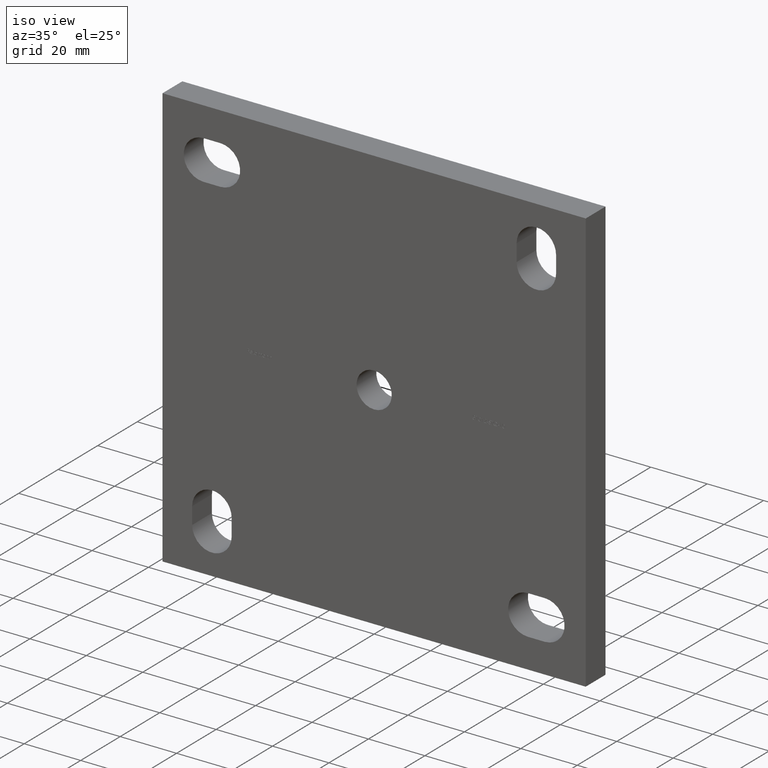
[diagram: clean part render]
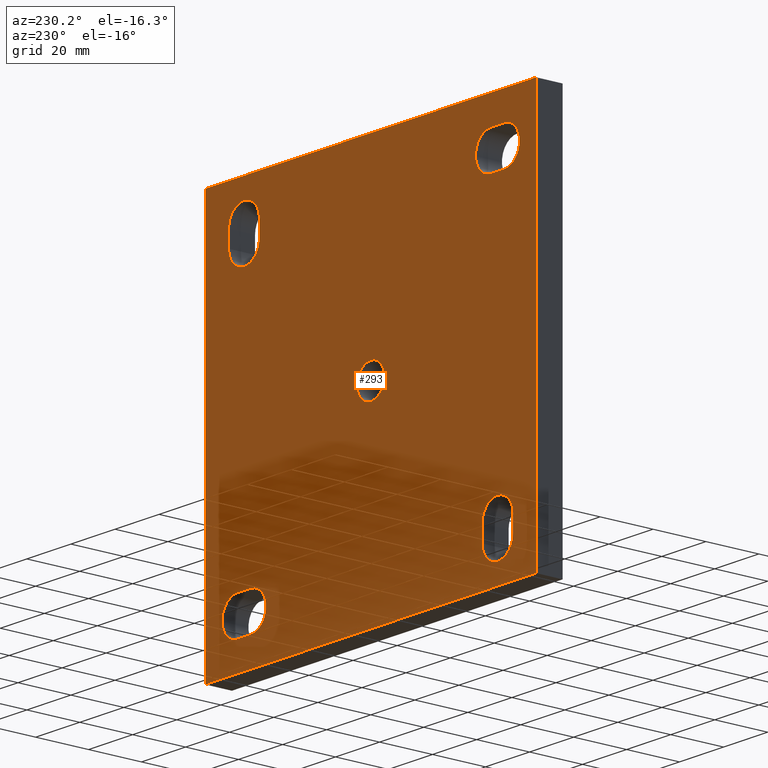
[diagram: tour spotlight — one face highlighted and labeled with its STEP entity id]
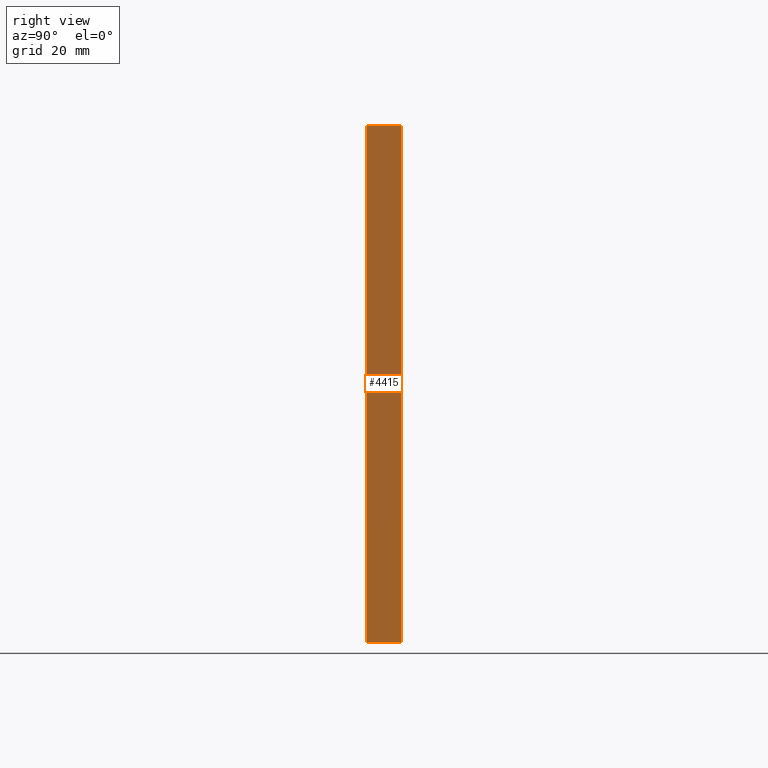
[diagram: tour spotlight — one face highlighted and labeled with its STEP entity id]
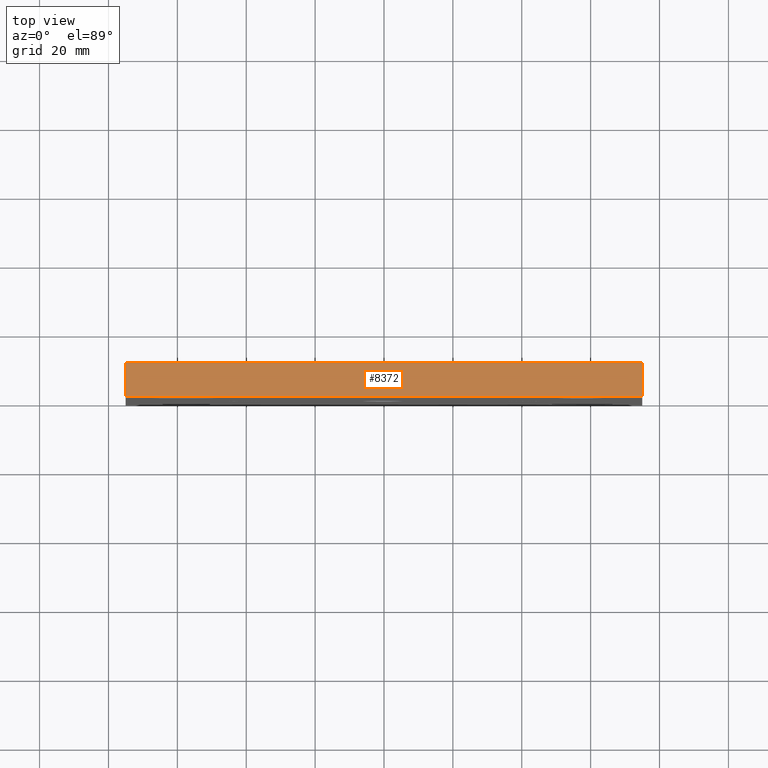
[diagram: tour spotlight — one face highlighted and labeled with its STEP entity id]
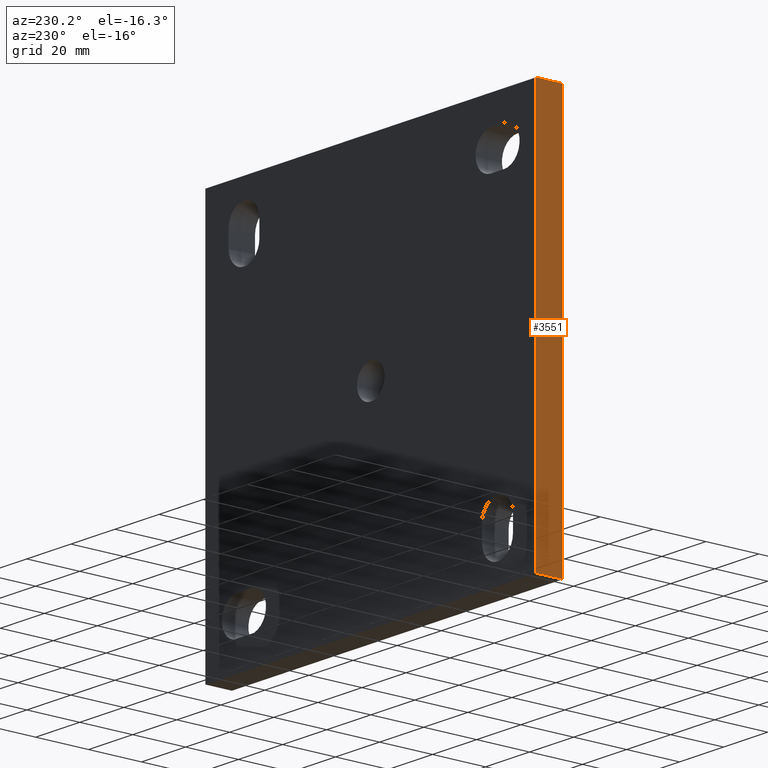
[diagram: tour spotlight — one face highlighted and labeled with its STEP entity id]
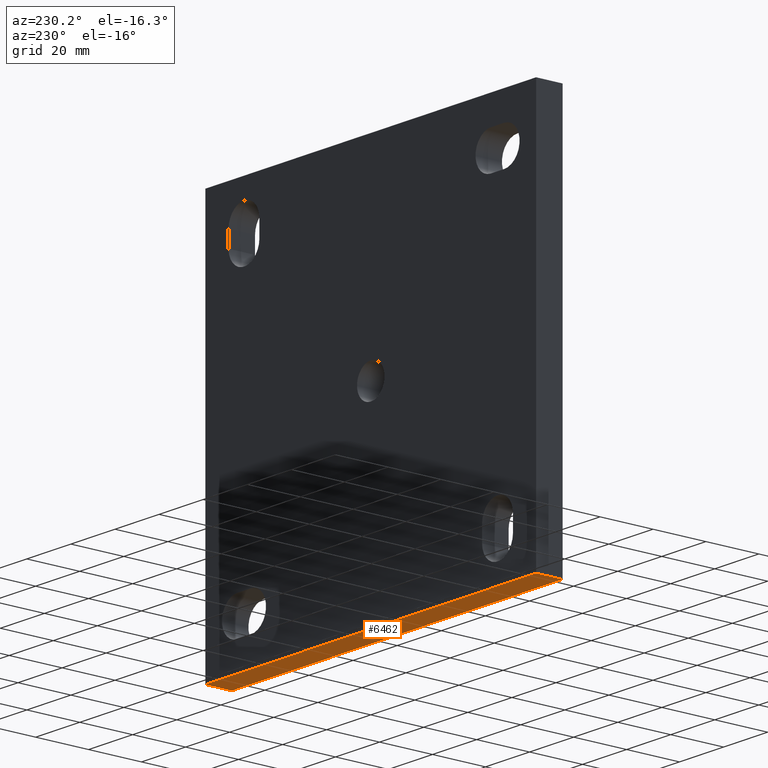
[diagram: tour spotlight — one face highlighted and labeled with its STEP entity id]
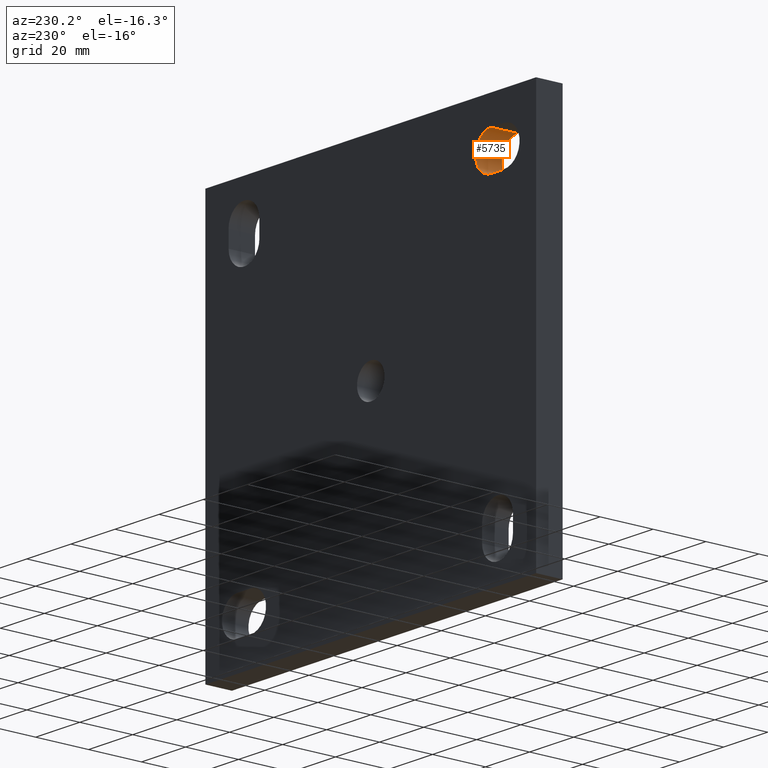
[diagram: tour spotlight — one face highlighted and labeled with its STEP entity id]
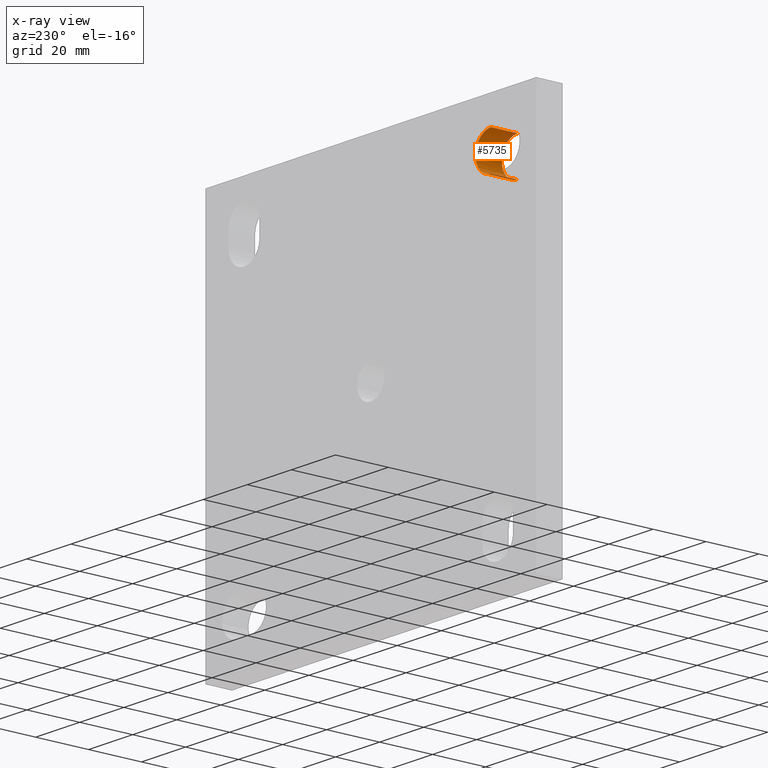
[diagram: x-ray of the same camera — body ghosted, this tour face saturated]
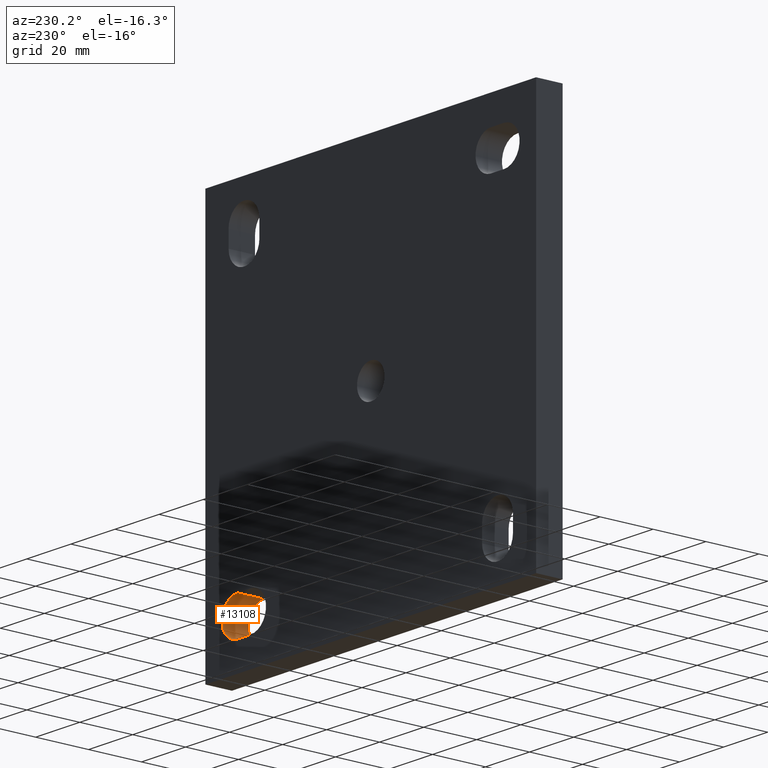
[diagram: tour spotlight — one face highlighted and labeled with its STEP entity id]
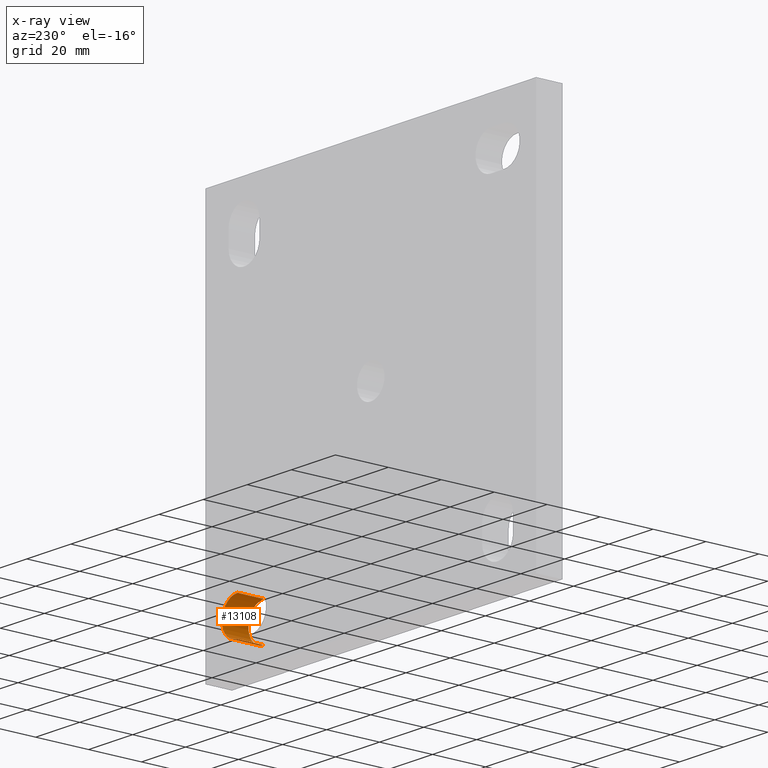
[diagram: x-ray of the same camera — body ghosted, this tour face saturated]
A machine part: a face-by-face anatomy tour. The part has 265 B-rep faces; the first image is the clean iso view, then the 7 largest visible faces are spotlighted one at a time (largest first), each with its STEP entity span.

Face 1 — auxiliary view, entity #293. In plain terms, the highlighted planar face has unit normal (0, 1, 0).
Definition (entity closure, byte-faithful):
#127 = CARTESIAN_POINT ( 'NONE',  ( 75.00000000000001400, 10.00000000000000000, 75.00000000000001400 ) ) ;
#230 = EDGE_CURVE ( 'NONE', #9574, #13491, #13199, .T. ) ;
#264 = EDGE_CURVE ( 'NONE', #12780, #2427, #3860, .T. ) ;
#293 = ADVANCED_FACE ( 'NONE', ( #11169, #11011, #8804, #827, #6077, #8644 ), #10919, .T. ) ;
#425 = VERTEX_POINT ( 'NONE', #127 ) ;
#428 = CARTESIAN_POINT ( 'NONE',  ( 0.0000000000000000000, 10.00000000000000000, 0.0000000000000000000 ) ) ;
#483 = CARTESIAN_POINT ( 'NONE',  ( -60.50000000000002100, 10.00000000000000000, 64.49999999999998600 ) ) ;
#506 = CARTESIAN_POINT ( 'NONE',  ( 64.50000000000000000, 10.00000000000000000, 60.50000000000002800 ) ) ;
#512 = LINE ( 'NONE', #6404, #7820 ) ;
#721 = EDGE_CURVE ( 'NONE', #13798, #8674, #11095, .T. ) ;
#727 = DIRECTION ( 'NONE',  ( 0.0000000000000000000, 0.0000000000000000000, 1.000000000000000000 ) ) ;
#827 = FACE_BOUND ( 'NONE', #12759, .T. ) ;
#866 = CARTESIAN_POINT ( 'NONE',  ( -64.49999999999998600, 10.00000000000000000, -60.50000000000006400 ) ) ;
#1074 = CARTESIAN_POINT ( 'NONE',  ( 54.50000000000000700, 10.00000000000000000, -50.50000000000003600 ) ) ;
#1269 = AXIS2_PLACEMENT_3D ( 'NONE', #8218, #6120, #5026 ) ;
#1350 = VECTOR ( 'NONE', #4437, 1000.000000000000000 ) ;
#1474 = CARTESIAN_POINT ( 'NONE',  ( -60.50000000000002100, 10.00000000000000000, 50.50000000000000000 ) ) ;
#1659 = VECTOR ( 'NONE', #6589, 1000.000000000000000 ) ;
#1722 = CARTESIAN_POINT ( 'NONE',  ( 7.654042494670957600E-016, 10.00000000000000000, -6.250000000000000000 ) ) ;
#1734 = CIRCLE ( 'NONE', #7396, 6.250000000000000000 ) ;
#1901 = ORIENTED_EDGE ( 'NONE', *, *, #11914, .F. ) ;
#1940 = CARTESIAN_POINT ( 'NONE',  ( 74.99999999999998600, 10.00000000000000000, -74.99999999999998600 ) ) ;
#2047 = EDGE_LOOP ( 'NONE', ( #6634, #12879, #6286, #1901 ) ) ;
#2128 = DIRECTION ( 'NONE',  ( 1.850371707708594300E-016, 0.0000000000000000000, 1.000000000000000000 ) ) ;
#2224 = CARTESIAN_POINT ( 'NONE',  ( -50.50000000000002100, 10.00000000000000000, -60.50000000000006400 ) ) ;
#2284 = CARTESIAN_POINT ( 'NONE',  ( -64.49999999999998600, 10.00000000000000000, -54.50000000000005000 ) ) ;
#2359 = ORIENTED_EDGE ( 'NONE', *, *, #4051, .F. ) ;
#2427 = VERTEX_POINT ( 'NONE', #3637 ) ;
#2527 = ORIENTED_EDGE ( 'NONE', *, *, #4696, .F. ) ;
#2658 = AXIS2_PLACEMENT_3D ( 'NONE', #9123, #13775, #727 ) ;
#2734 = EDGE_CURVE ( 'NONE', #5788, #9744, #4277, .T. ) ;
#2806 = CARTESIAN_POINT ( 'NONE',  ( 54.50000000000000700, 10.00000000000000000, -57.50000000000003600 ) ) ;
#2895 = VERTEX_POINT ( 'NONE', #3191 ) ;
#2917 = ORIENTED_EDGE ( 'NONE', *, *, #10808, .F. ) ;
#2932 = ORIENTED_EDGE ( 'NONE', *, *, #3079, .T. ) ;
#2977 = EDGE_LOOP ( 'NONE', ( #2932, #13597, #4953, #11418 ) ) ;
#3079 = EDGE_CURVE ( 'NONE', #425, #6130, #8021, .T. ) ;
#3157 = EDGE_CURVE ( 'NONE', #12249, #5788, #10207, .T. ) ;
#3189 = CIRCLE ( 'NONE', #7657, 6.999999999999992000 ) ;
#3191 = CARTESIAN_POINT ( 'NONE',  ( 57.50000000000000700, 10.00000000000000000, 67.50000000000001400 ) ) ;
#3205 = CARTESIAN_POINT ( 'NONE',  ( -60.50000000000002100, 10.00000000000000000, 50.50000000000000000 ) ) ;
#3276 = LINE ( 'NONE', #7265, #12819 ) ;
#3357 = EDGE_CURVE ( 'NONE', #3571, #12189, #8354, .T. ) ;
#3427 = CARTESIAN_POINT ( 'NONE',  ( -64.49999999999998600, 10.00000000000000000, -60.50000000000006400 ) ) ;
#3443 = CARTESIAN_POINT ( 'NONE',  ( 60.50000000000001400, 10.00000000000000000, -64.50000000000002800 ) ) ;
#3461 = DIRECTION ( 'NONE',  ( 0.0000000000000000000, 0.0000000000000000000, 1.000000000000000000 ) ) ;
#3468 = VERTEX_POINT ( 'NONE', #506 ) ;
#3535 = DIRECTION ( 'NONE',  ( 0.0000000000000000000, 1.000000000000000000, 0.0000000000000000000 ) ) ;
#3556 = VERTEX_POINT ( 'NONE', #8412 ) ;
#3571 = VERTEX_POINT ( 'NONE', #10386 ) ;
#3613 = CARTESIAN_POINT ( 'NONE',  ( -57.50000000000000700, 10.00000000000000000, -60.50000000000007100 ) ) ;
#3637 = CARTESIAN_POINT ( 'NONE',  ( -50.50000000000002100, 10.00000000000000000, -54.50000000000004300 ) ) ;
#3664 = CARTESIAN_POINT ( 'NONE',  ( 64.50000000000000000, 10.00000000000000000, 54.50000000000000700 ) ) ;
#3726 = CARTESIAN_POINT ( 'NONE',  ( -57.50000000000000700, 10.00000000000000000, -54.50000000000004300 ) ) ;
#3731 = CIRCLE ( 'NONE', #11681, 6.999999999999978700 ) ;
#3738 = LINE ( 'NONE', #2224, #13582 ) ;
#3859 = CARTESIAN_POINT ( 'NONE',  ( -57.50000000000000700, 10.00000000000000000, -47.50000000000005700 ) ) ;
#3860 = CIRCLE ( 'NONE', #11333, 6.999999999999985800 ) ;
#3904 = CIRCLE ( 'NONE', #2658, 6.999999999999992000 ) ;
#3919 = VECTOR ( 'NONE', #2128, 1000.000000000000000 ) ;
#3948 = VERTEX_POINT ( 'NONE', #12637 ) ;
#3995 = CARTESIAN_POINT ( 'NONE',  ( 0.0000000000000000000, 10.00000000000000000, 0.0000000000000000000 ) ) ;
#4003 = LINE ( 'NONE', #7053, #12471 ) ;
#4004 = CARTESIAN_POINT ( 'NONE',  ( -54.50000000000000000, 10.00000000000000000, 57.49999999999999300 ) ) ;
#4051 = EDGE_CURVE ( 'NONE', #5891, #3948, #512, .T. ) ;
#4069 = CIRCLE ( 'NONE', #6422, 6.999999999999992000 ) ;
#4097 = DIRECTION ( 'NONE',  ( 0.0000000000000000000, 0.0000000000000000000, 1.000000000000000000 ) ) ;
#4258 = EDGE_CURVE ( 'NONE', #3556, #13798, #3731, .T. ) ;
#4277 = LINE ( 'NONE', #3205, #5137 ) ;
#4341 = EDGE_CURVE ( 'NONE', #9744, #5109, #3904, .T. ) ;
#4418 = VECTOR ( 'NONE', #6689, 1000.000000000000000 ) ;
#4437 = DIRECTION ( 'NONE',  ( 0.0000000000000000000, 0.0000000000000000000, 1.000000000000000000 ) ) ;
#4442 = DIRECTION ( 'NONE',  ( 0.0000000000000000000, 1.000000000000000000, 0.0000000000000000000 ) ) ;
#4489 = CARTESIAN_POINT ( 'NONE',  ( -60.50000000000002100, 10.00000000000000000, 64.49999999999998600 ) ) ;
#4584 = EDGE_CURVE ( 'NONE', #13959, #10526, #6297, .T. ) ;
#4642 = EDGE_CURVE ( 'NONE', #6130, #3571, #11032, .T. ) ;
#4696 = EDGE_CURVE ( 'NONE', #13491, #5891, #4069, .T. ) ;
#4837 = DIRECTION ( 'NONE',  ( 0.0000000000000000000, 0.0000000000000000000, 1.000000000000000000 ) ) ;
#4953 = ORIENTED_EDGE ( 'NONE', *, *, #3357, .T. ) ;
#5026 = DIRECTION ( 'NONE',  ( 0.0000000000000000000, 0.0000000000000000000, 1.000000000000000000 ) ) ;
#5097 = VERTEX_POINT ( 'NONE', #1722 ) ;
#5109 = VERTEX_POINT ( 'NONE', #483 ) ;
#5137 = VECTOR ( 'NONE', #6418, 1000.000000000000000 ) ;
#5285 = DIRECTION ( 'NONE',  ( 0.0000000000000000000, 0.0000000000000000000, 1.000000000000000000 ) ) ;
#5357 = ORIENTED_EDGE ( 'NONE', *, *, #721, .F. ) ;
#5378 = DIRECTION ( 'NONE',  ( 0.0000000000000000000, 1.000000000000000000, 0.0000000000000000000 ) ) ;
#5415 = CARTESIAN_POINT ( 'NONE',  ( -57.50000000000000700, 10.00000000000000000, -54.50000000000004300 ) ) ;
#5424 = AXIS2_PLACEMENT_3D ( 'NONE', #3995, #6085, #11543 ) ;
#5693 = AXIS2_PLACEMENT_3D ( 'NONE', #4004, #8396, #4097 ) ;
#5722 = CIRCLE ( 'NONE', #1269, 6.999999999999992000 ) ;
#5788 = VERTEX_POINT ( 'NONE', #11109 ) ;
#5800 = CARTESIAN_POINT ( 'NONE',  ( 60.50000000000001400, 10.00000000000000000, -50.50000000000004300 ) ) ;
#5839 = ORIENTED_EDGE ( 'NONE', *, *, #13813, .F. ) ;
#5891 = VERTEX_POINT ( 'NONE', #3443 ) ;
#5899 = ORIENTED_EDGE ( 'NONE', *, *, #13245, .F. ) ;
#5974 = EDGE_CURVE ( 'NONE', #8674, #12780, #8451, .T. ) ;
#6014 = EDGE_CURVE ( 'NONE', #11249, #2895, #5722, .T. ) ;
#6018 = DIRECTION ( 'NONE',  ( -1.000000000000000000, -0.0000000000000000000, -0.0000000000000000000 ) ) ;
#6077 = FACE_BOUND ( 'NONE', #9235, .T. ) ;
#6085 = DIRECTION ( 'NONE',  ( 0.0000000000000000000, 1.000000000000000000, 0.0000000000000000000 ) ) ;
#6108 = ORIENTED_EDGE ( 'NONE', *, *, #4584, .F. ) ;
#6120 = DIRECTION ( 'NONE',  ( 0.0000000000000000000, 1.000000000000000000, 0.0000000000000000000 ) ) ;
#6130 = VERTEX_POINT ( 'NONE', #1940 ) ;
#6134 = CIRCLE ( 'NONE', #5424, 6.250000000000000000 ) ;
#6157 = VECTOR ( 'NONE', #6863, 1000.000000000000000 ) ;
#6209 = DIRECTION ( 'NONE',  ( 0.0000000000000000000, 1.000000000000000000, 0.0000000000000000000 ) ) ;
#6286 = ORIENTED_EDGE ( 'NONE', *, *, #3157, .F. ) ;
#6297 = CIRCLE ( 'NONE', #13132, 6.999999999999992000 ) ;
#6404 = CARTESIAN_POINT ( 'NONE',  ( 54.50000000000000700, 10.00000000000000000, -64.50000000000002800 ) ) ;
#6418 = DIRECTION ( 'NONE',  ( -1.000000000000000000, -0.0000000000000000000, -0.0000000000000000000 ) ) ;
#6422 = AXIS2_PLACEMENT_3D ( 'NONE', #7204, #7296, #8409 ) ;
#6423 = CARTESIAN_POINT ( 'NONE',  ( -75.00000000000001400, 10.00000000000000000, -74.99999999999998600 ) ) ;
#6446 = VERTEX_POINT ( 'NONE', #13000 ) ;
#6589 = DIRECTION ( 'NONE',  ( 1.000000000000000000, 0.0000000000000000000, 0.0000000000000000000 ) ) ;
#6627 = EDGE_CURVE ( 'NONE', #12189, #425, #4003, .T. ) ;
#6634 = ORIENTED_EDGE ( 'NONE', *, *, #4341, .F. ) ;
#6689 = DIRECTION ( 'NONE',  ( 1.000000000000000000, 0.0000000000000000000, 0.0000000000000000000 ) ) ;
#6838 = ORIENTED_EDGE ( 'NONE', *, *, #8169, .F. ) ;
#6863 = DIRECTION ( 'NONE',  ( -1.850371707708594300E-016, -0.0000000000000000000, -1.000000000000000000 ) ) ;
#6886 = ORIENTED_EDGE ( 'NONE', *, *, #264, .F. ) ;
#6889 = DIRECTION ( 'NONE',  ( 0.0000000000000000000, 0.0000000000000000000, 1.000000000000000000 ) ) ;
#7053 = CARTESIAN_POINT ( 'NONE',  ( -74.99999999999998600, 10.00000000000000000, 75.00000000000001400 ) ) ;
#7204 = CARTESIAN_POINT ( 'NONE',  ( 60.50000000000002800, 10.00000000000000000, -57.50000000000003600 ) ) ;
#7265 = CARTESIAN_POINT ( 'NONE',  ( 64.50000000000000000, 10.00000000000000000, 54.50000000000000700 ) ) ;
#7296 = DIRECTION ( 'NONE',  ( 0.0000000000000000000, 1.000000000000000000, 0.0000000000000000000 ) ) ;
#7396 = AXIS2_PLACEMENT_3D ( 'NONE', #428, #13381, #6889 ) ;
#7657 = AXIS2_PLACEMENT_3D ( 'NONE', #2806, #9421, #11553 ) ;
#7726 = CARTESIAN_POINT ( 'NONE',  ( 50.50000000000001400, 10.00000000000000000, 54.50000000000000700 ) ) ;
#7787 = DIRECTION ( 'NONE',  ( 0.0000000000000000000, 0.0000000000000000000, 1.000000000000000000 ) ) ;
#7820 = VECTOR ( 'NONE', #9578, 1000.000000000000000 ) ;
#7840 = ORIENTED_EDGE ( 'NONE', *, *, #13323, .F. ) ;
#8021 = LINE ( 'NONE', #11176, #6157 ) ;
#8106 = ORIENTED_EDGE ( 'NONE', *, *, #6014, .F. ) ;
#8169 = EDGE_CURVE ( 'NONE', #3468, #13959, #3276, .T. ) ;
#8218 = CARTESIAN_POINT ( 'NONE',  ( 57.50000000000000700, 10.00000000000000000, 60.50000000000002800 ) ) ;
#8354 = LINE ( 'NONE', #6423, #3919 ) ;
#8396 = DIRECTION ( 'NONE',  ( 0.0000000000000000000, 1.000000000000000000, 0.0000000000000000000 ) ) ;
#8409 = DIRECTION ( 'NONE',  ( 0.0000000000000000000, 0.0000000000000000000, 1.000000000000000000 ) ) ;
#8412 = CARTESIAN_POINT ( 'NONE',  ( -50.50000000000002100, 10.00000000000000000, -60.50000000000006400 ) ) ;
#8451 = CIRCLE ( 'NONE', #13635, 6.999999999999985800 ) ;
#8552 = CARTESIAN_POINT ( 'NONE',  ( -74.99999999999998600, 10.00000000000000000, 75.00000000000001400 ) ) ;
#8580 = EDGE_LOOP ( 'NONE', ( #12966, #7840, #6886, #13142, #5357 ) ) ;
#8644 = FACE_OUTER_BOUND ( 'NONE', #2977, .T. ) ;
#8674 = VERTEX_POINT ( 'NONE', #2284 ) ;
#8702 = DIRECTION ( 'NONE',  ( 0.0000000000000000000, 0.0000000000000000000, 1.000000000000000000 ) ) ;
#8804 = FACE_BOUND ( 'NONE', #2047, .T. ) ;
#9123 = CARTESIAN_POINT ( 'NONE',  ( -60.50000000000002100, 10.00000000000000000, 57.49999999999999300 ) ) ;
#9235 = EDGE_LOOP ( 'NONE', ( #2917, #5899 ) ) ;
#9292 = EDGE_CURVE ( 'NONE', #3948, #9574, #3189, .T. ) ;
#9421 = DIRECTION ( 'NONE',  ( 0.0000000000000000000, 1.000000000000000000, 0.0000000000000000000 ) ) ;
#9502 = ORIENTED_EDGE ( 'NONE', *, *, #13436, .F. ) ;
#9522 = LINE ( 'NONE', #7726, #1350 ) ;
#9574 = VERTEX_POINT ( 'NONE', #1074 ) ;
#9578 = DIRECTION ( 'NONE',  ( -1.000000000000000000, -0.0000000000000000000, -0.0000000000000000000 ) ) ;
#9744 = VERTEX_POINT ( 'NONE', #1474 ) ;
#10207 = CIRCLE ( 'NONE', #5693, 6.999999999999992000 ) ;
#10386 = CARTESIAN_POINT ( 'NONE',  ( -75.00000000000001400, 10.00000000000000000, -74.99999999999998600 ) ) ;
#10413 = VECTOR ( 'NONE', #5285, 1000.000000000000000 ) ;
#10506 = CARTESIAN_POINT ( 'NONE',  ( 50.50000000000001400, 10.00000000000000000, 60.50000000000002100 ) ) ;
#10526 = VERTEX_POINT ( 'NONE', #11789 ) ;
#10541 = VECTOR ( 'NONE', #6018, 1000.000000000000000 ) ;
#10703 = AXIS2_PLACEMENT_3D ( 'NONE', #13332, #3535, #7787 ) ;
#10791 = CARTESIAN_POINT ( 'NONE',  ( 0.0000000000000000000, 10.00000000000000000, 0.0000000000000000000 ) ) ;
#10808 = EDGE_CURVE ( 'NONE', #6446, #5097, #1734, .T. ) ;
#10900 = ORIENTED_EDGE ( 'NONE', *, *, #230, .F. ) ;
#10919 = PLANE ( 'NONE',  #11065 ) ;
#11011 = FACE_BOUND ( 'NONE', #11171, .T. ) ;
#11032 = LINE ( 'NONE', #12495, #10541 ) ;
#11051 = ORIENTED_EDGE ( 'NONE', *, *, #9292, .F. ) ;
#11065 = AXIS2_PLACEMENT_3D ( 'NONE', #10791, #5378, #13085 ) ;
#11095 = LINE ( 'NONE', #866, #10413 ) ;
#11109 = CARTESIAN_POINT ( 'NONE',  ( -54.50000000000000000, 10.00000000000000000, 50.50000000000000000 ) ) ;
#11169 = FACE_BOUND ( 'NONE', #8580, .T. ) ;
#11171 = EDGE_LOOP ( 'NONE', ( #6108, #6838, #9502, #8106, #5839 ) ) ;
#11176 = CARTESIAN_POINT ( 'NONE',  ( 74.99999999999998600, 10.00000000000000000, -74.99999999999998600 ) ) ;
#11249 = VERTEX_POINT ( 'NONE', #10506 ) ;
#11333 = AXIS2_PLACEMENT_3D ( 'NONE', #5415, #4442, #8702 ) ;
#11337 = DIRECTION ( 'NONE',  ( 0.0000000000000000000, 1.000000000000000000, 0.0000000000000000000 ) ) ;
#11418 = ORIENTED_EDGE ( 'NONE', *, *, #6627, .T. ) ;
#11543 = DIRECTION ( 'NONE',  ( 0.0000000000000000000, 0.0000000000000000000, 1.000000000000000000 ) ) ;
#11553 = DIRECTION ( 'NONE',  ( 0.0000000000000000000, 0.0000000000000000000, 1.000000000000000000 ) ) ;
#11672 = DIRECTION ( 'NONE',  ( -0.0000000000000000000, -0.0000000000000000000, -1.000000000000000000 ) ) ;
#11681 = AXIS2_PLACEMENT_3D ( 'NONE', #3613, #12247, #3461 ) ;
#11789 = CARTESIAN_POINT ( 'NONE',  ( 50.50000000000001400, 10.00000000000000000, 54.50000000000000700 ) ) ;
#11889 = LINE ( 'NONE', #4489, #4418 ) ;
#11914 = EDGE_CURVE ( 'NONE', #5109, #12249, #11889, .T. ) ;
#12062 = CIRCLE ( 'NONE', #10703, 6.999999999999992000 ) ;
#12189 = VERTEX_POINT ( 'NONE', #8552 ) ;
#12247 = DIRECTION ( 'NONE',  ( 0.0000000000000000000, 1.000000000000000000, 0.0000000000000000000 ) ) ;
#12249 = VERTEX_POINT ( 'NONE', #13990 ) ;
#12269 = CARTESIAN_POINT ( 'NONE',  ( 57.50000000000000700, 10.00000000000000000, 54.50000000000000000 ) ) ;
#12471 = VECTOR ( 'NONE', #13545, 1000.000000000000000 ) ;
#12495 = CARTESIAN_POINT ( 'NONE',  ( -75.00000000000001400, 10.00000000000000000, -74.99999999999998600 ) ) ;
#12637 = CARTESIAN_POINT ( 'NONE',  ( 54.50000000000000700, 10.00000000000000000, -64.50000000000002800 ) ) ;
#12759 = EDGE_LOOP ( 'NONE', ( #11051, #2359, #2527, #10900 ) ) ;
#12780 = VERTEX_POINT ( 'NONE', #3859 ) ;
#12819 = VECTOR ( 'NONE', #11672, 1000.000000000000000 ) ;
#12879 = ORIENTED_EDGE ( 'NONE', *, *, #2734, .F. ) ;
#12966 = ORIENTED_EDGE ( 'NONE', *, *, #4258, .F. ) ;
#13000 = CARTESIAN_POINT ( 'NONE',  ( 0.0000000000000000000, 10.00000000000000000, 6.250000000000000000 ) ) ;
#13007 = DIRECTION ( 'NONE',  ( -0.0000000000000000000, -0.0000000000000000000, -1.000000000000000000 ) ) ;
#13085 = DIRECTION ( 'NONE',  ( 0.0000000000000000000, -0.0000000000000000000, 1.000000000000000000 ) ) ;
#13129 = CARTESIAN_POINT ( 'NONE',  ( 54.50000000000000700, 10.00000000000000000, -50.50000000000003600 ) ) ;
#13132 = AXIS2_PLACEMENT_3D ( 'NONE', #12269, #6209, #13720 ) ;
#13142 = ORIENTED_EDGE ( 'NONE', *, *, #5974, .F. ) ;
#13199 = LINE ( 'NONE', #13129, #1659 ) ;
#13245 = EDGE_CURVE ( 'NONE', #5097, #6446, #6134, .T. ) ;
#13323 = EDGE_CURVE ( 'NONE', #2427, #3556, #3738, .T. ) ;
#13332 = CARTESIAN_POINT ( 'NONE',  ( 57.50000000000000700, 10.00000000000000000, 60.50000000000002800 ) ) ;
#13381 = DIRECTION ( 'NONE',  ( 0.0000000000000000000, 1.000000000000000000, 0.0000000000000000000 ) ) ;
#13436 = EDGE_CURVE ( 'NONE', #2895, #3468, #12062, .T. ) ;
#13491 = VERTEX_POINT ( 'NONE', #5800 ) ;
#13545 = DIRECTION ( 'NONE',  ( 1.000000000000000000, 0.0000000000000000000, 0.0000000000000000000 ) ) ;
#13582 = VECTOR ( 'NONE', #13007, 1000.000000000000000 ) ;
#13597 = ORIENTED_EDGE ( 'NONE', *, *, #4642, .T. ) ;
#13635 = AXIS2_PLACEMENT_3D ( 'NONE', #3726, #11337, #4837 ) ;
#13720 = DIRECTION ( 'NONE',  ( 0.0000000000000000000, 0.0000000000000000000, 1.000000000000000000 ) ) ;
#13775 = DIRECTION ( 'NONE',  ( 0.0000000000000000000, 1.000000000000000000, 0.0000000000000000000 ) ) ;
#13798 = VERTEX_POINT ( 'NONE', #3427 ) ;
#13813 = EDGE_CURVE ( 'NONE', #10526, #11249, #9522, .T. ) ;
#13959 = VERTEX_POINT ( 'NONE', #3664 ) ;
#13990 = CARTESIAN_POINT ( 'NONE',  ( -54.50000000000000000, 10.00000000000000000, 64.49999999999998600 ) ) ;

Face 2 — right view, entity #4415. In plain terms, the highlighted planar face has unit normal (-1, 0, 0).
Definition (entity closure, byte-faithful):
#127 = CARTESIAN_POINT ( 'NONE',  ( 75.00000000000001400, 10.00000000000000000, 75.00000000000001400 ) ) ;
#425 = VERTEX_POINT ( 'NONE', #127 ) ;
#731 = EDGE_CURVE ( 'NONE', #6130, #7080, #9396, .T. ) ;
#773 = CARTESIAN_POINT ( 'NONE',  ( 74.99999999999998600, 10.00000000000000000, -74.99999999999998600 ) ) ;
#776 = AXIS2_PLACEMENT_3D ( 'NONE', #773, #6182, #9401 ) ;
#812 = CARTESIAN_POINT ( 'NONE',  ( 74.99999999999998600, 0.0000000000000000000, -74.99999999999998600 ) ) ;
#930 = VECTOR ( 'NONE', #8477, 1000.000000000000000 ) ;
#1423 = ORIENTED_EDGE ( 'NONE', *, *, #6291, .T. ) ;
#1940 = CARTESIAN_POINT ( 'NONE',  ( 74.99999999999998600, 10.00000000000000000, -74.99999999999998600 ) ) ;
#1945 = LINE ( 'NONE', #1960, #930 ) ;
#1960 = CARTESIAN_POINT ( 'NONE',  ( 74.99999999999998600, 0.0000000000000000000, -74.99999999999998600 ) ) ;
#2875 = FACE_OUTER_BOUND ( 'NONE', #13301, .T. ) ;
#3079 = EDGE_CURVE ( 'NONE', #425, #6130, #8021, .T. ) ;
#3605 = CARTESIAN_POINT ( 'NONE',  ( 75.00000000000001400, 10.00000000000000000, 75.00000000000001400 ) ) ;
#4131 = CARTESIAN_POINT ( 'NONE',  ( 74.99999999999998600, 10.00000000000000000, -74.99999999999998600 ) ) ;
#4415 = ADVANCED_FACE ( 'NONE', ( #2875 ), #8388, .F. ) ;
#5075 = VERTEX_POINT ( 'NONE', #12523 ) ;
#5547 = EDGE_CURVE ( 'NONE', #5075, #7080, #1945, .T. ) ;
#6130 = VERTEX_POINT ( 'NONE', #1940 ) ;
#6157 = VECTOR ( 'NONE', #6863, 1000.000000000000000 ) ;
#6182 = DIRECTION ( 'NONE',  ( -1.000000000000000000, 0.0000000000000000000, 1.850371707708594300E-016 ) ) ;
#6291 = EDGE_CURVE ( 'NONE', #425, #5075, #14030, .T. ) ;
#6357 = VECTOR ( 'NONE', #8570, 1000.000000000000000 ) ;
#6863 = DIRECTION ( 'NONE',  ( -1.850371707708594300E-016, -0.0000000000000000000, -1.000000000000000000 ) ) ;
#7080 = VERTEX_POINT ( 'NONE', #812 ) ;
#8021 = LINE ( 'NONE', #11176, #6157 ) ;
#8388 = PLANE ( 'NONE',  #776 ) ;
#8477 = DIRECTION ( 'NONE',  ( -1.850371707708594300E-016, -0.0000000000000000000, -1.000000000000000000 ) ) ;
#8570 = DIRECTION ( 'NONE',  ( -0.0000000000000000000, -1.000000000000000000, -0.0000000000000000000 ) ) ;
#9161 = DIRECTION ( 'NONE',  ( -0.0000000000000000000, -1.000000000000000000, -0.0000000000000000000 ) ) ;
#9396 = LINE ( 'NONE', #4131, #6357 ) ;
#9401 = DIRECTION ( 'NONE',  ( 1.850371707708594300E-016, 0.0000000000000000000, 1.000000000000000000 ) ) ;
#10971 = ORIENTED_EDGE ( 'NONE', *, *, #5547, .T. ) ;
#11176 = CARTESIAN_POINT ( 'NONE',  ( 74.99999999999998600, 10.00000000000000000, -74.99999999999998600 ) ) ;
#12523 = CARTESIAN_POINT ( 'NONE',  ( 75.00000000000001400, 0.0000000000000000000, 75.00000000000001400 ) ) ;
#13301 = EDGE_LOOP ( 'NONE', ( #10971, #13826, #13850, #1423 ) ) ;
#13680 = VECTOR ( 'NONE', #9161, 1000.000000000000000 ) ;
#13826 = ORIENTED_EDGE ( 'NONE', *, *, #731, .F. ) ;
#13850 = ORIENTED_EDGE ( 'NONE', *, *, #3079, .F. ) ;
#14030 = LINE ( 'NONE', #3605, #13680 ) ;

Face 3 — top view, entity #8372. In plain terms, the highlighted planar face has unit normal (0, 0, -1).
Definition (entity closure, byte-faithful):
#80 = DIRECTION ( 'NONE',  ( 1.000000000000000000, 0.0000000000000000000, 0.0000000000000000000 ) ) ;
#127 = CARTESIAN_POINT ( 'NONE',  ( 75.00000000000001400, 10.00000000000000000, 75.00000000000001400 ) ) ;
#178 = DIRECTION ( 'NONE',  ( -0.0000000000000000000, -1.000000000000000000, -0.0000000000000000000 ) ) ;
#425 = VERTEX_POINT ( 'NONE', #127 ) ;
#913 = EDGE_CURVE ( 'NONE', #5374, #5075, #2087, .T. ) ;
#2087 = LINE ( 'NONE', #3376, #12957 ) ;
#2182 = CARTESIAN_POINT ( 'NONE',  ( -74.99999999999998600, 10.00000000000000000, 75.00000000000001400 ) ) ;
#3004 = ORIENTED_EDGE ( 'NONE', *, *, #8308, .T. ) ;
#3126 = LINE ( 'NONE', #6635, #10611 ) ;
#3376 = CARTESIAN_POINT ( 'NONE',  ( -74.99999999999998600, 0.0000000000000000000, 75.00000000000001400 ) ) ;
#3605 = CARTESIAN_POINT ( 'NONE',  ( 75.00000000000001400, 10.00000000000000000, 75.00000000000001400 ) ) ;
#3838 = DIRECTION ( 'NONE',  ( -1.000000000000000000, 0.0000000000000000000, -0.0000000000000000000 ) ) ;
#4003 = LINE ( 'NONE', #7053, #12471 ) ;
#4807 = CARTESIAN_POINT ( 'NONE',  ( -74.99999999999998600, 0.0000000000000000000, 75.00000000000001400 ) ) ;
#5075 = VERTEX_POINT ( 'NONE', #12523 ) ;
#5374 = VERTEX_POINT ( 'NONE', #4807 ) ;
#5681 = ORIENTED_EDGE ( 'NONE', *, *, #6627, .F. ) ;
#6211 = AXIS2_PLACEMENT_3D ( 'NONE', #2182, #11121, #3838 ) ;
#6291 = EDGE_CURVE ( 'NONE', #425, #5075, #14030, .T. ) ;
#6478 = EDGE_LOOP ( 'NONE', ( #13374, #9995, #5681, #3004 ) ) ;
#6627 = EDGE_CURVE ( 'NONE', #12189, #425, #4003, .T. ) ;
#6635 = CARTESIAN_POINT ( 'NONE',  ( -74.99999999999998600, 10.00000000000000000, 75.00000000000001400 ) ) ;
#7053 = CARTESIAN_POINT ( 'NONE',  ( -74.99999999999998600, 10.00000000000000000, 75.00000000000001400 ) ) ;
#8308 = EDGE_CURVE ( 'NONE', #12189, #5374, #3126, .T. ) ;
#8372 = ADVANCED_FACE ( 'NONE', ( #11968 ), #11228, .F. ) ;
#8552 = CARTESIAN_POINT ( 'NONE',  ( -74.99999999999998600, 10.00000000000000000, 75.00000000000001400 ) ) ;
#9161 = DIRECTION ( 'NONE',  ( -0.0000000000000000000, -1.000000000000000000, -0.0000000000000000000 ) ) ;
#9995 = ORIENTED_EDGE ( 'NONE', *, *, #6291, .F. ) ;
#10611 = VECTOR ( 'NONE', #178, 1000.000000000000000 ) ;
#11121 = DIRECTION ( 'NONE',  ( 0.0000000000000000000, 0.0000000000000000000, -1.000000000000000000 ) ) ;
#11228 = PLANE ( 'NONE',  #6211 ) ;
#11968 = FACE_OUTER_BOUND ( 'NONE', #6478, .T. ) ;
#12189 = VERTEX_POINT ( 'NONE', #8552 ) ;
#12471 = VECTOR ( 'NONE', #13545, 1000.000000000000000 ) ;
#12523 = CARTESIAN_POINT ( 'NONE',  ( 75.00000000000001400, 0.0000000000000000000, 75.00000000000001400 ) ) ;
#12957 = VECTOR ( 'NONE', #80, 1000.000000000000000 ) ;
#13374 = ORIENTED_EDGE ( 'NONE', *, *, #913, .T. ) ;
#13545 = DIRECTION ( 'NONE',  ( 1.000000000000000000, 0.0000000000000000000, 0.0000000000000000000 ) ) ;
#13680 = VECTOR ( 'NONE', #9161, 1000.000000000000000 ) ;
#14030 = LINE ( 'NONE', #3605, #13680 ) ;

Face 4 — auxiliary view, entity #3551. In plain terms, the highlighted planar face has unit normal (1, 0, -0).
Definition (entity closure, byte-faithful):
#178 = DIRECTION ( 'NONE',  ( -0.0000000000000000000, -1.000000000000000000, -0.0000000000000000000 ) ) ;
#799 = DIRECTION ( 'NONE',  ( 1.000000000000000000, 0.0000000000000000000, -1.850371707708594300E-016 ) ) ;
#905 = VERTEX_POINT ( 'NONE', #1264 ) ;
#984 = ORIENTED_EDGE ( 'NONE', *, *, #8308, .F. ) ;
#1264 = CARTESIAN_POINT ( 'NONE',  ( -75.00000000000001400, 0.0000000000000000000, -74.99999999999998600 ) ) ;
#1691 = DIRECTION ( 'NONE',  ( -1.850371707708594300E-016, 0.0000000000000000000, -1.000000000000000000 ) ) ;
#1811 = ORIENTED_EDGE ( 'NONE', *, *, #12280, .T. ) ;
#1891 = CARTESIAN_POINT ( 'NONE',  ( -75.00000000000001400, 0.0000000000000000000, -74.99999999999998600 ) ) ;
#2128 = DIRECTION ( 'NONE',  ( 1.850371707708594300E-016, 0.0000000000000000000, 1.000000000000000000 ) ) ;
#2209 = FACE_OUTER_BOUND ( 'NONE', #13346, .T. ) ;
#2966 = CARTESIAN_POINT ( 'NONE',  ( -75.00000000000001400, 10.00000000000000000, -74.99999999999998600 ) ) ;
#3106 = DIRECTION ( 'NONE',  ( -0.0000000000000000000, -1.000000000000000000, -0.0000000000000000000 ) ) ;
#3126 = LINE ( 'NONE', #6635, #10611 ) ;
#3357 = EDGE_CURVE ( 'NONE', #3571, #12189, #8354, .T. ) ;
#3551 = ADVANCED_FACE ( 'NONE', ( #2209 ), #11384, .F. ) ;
#3571 = VERTEX_POINT ( 'NONE', #10386 ) ;
#3666 = AXIS2_PLACEMENT_3D ( 'NONE', #2966, #799, #1691 ) ;
#3919 = VECTOR ( 'NONE', #2128, 1000.000000000000000 ) ;
#4807 = CARTESIAN_POINT ( 'NONE',  ( -74.99999999999998600, 0.0000000000000000000, 75.00000000000001400 ) ) ;
#4894 = VECTOR ( 'NONE', #6065, 1000.000000000000000 ) ;
#5362 = CARTESIAN_POINT ( 'NONE',  ( -75.00000000000001400, 10.00000000000000000, -74.99999999999998600 ) ) ;
#5374 = VERTEX_POINT ( 'NONE', #4807 ) ;
#6065 = DIRECTION ( 'NONE',  ( 1.850371707708594300E-016, 0.0000000000000000000, 1.000000000000000000 ) ) ;
#6423 = CARTESIAN_POINT ( 'NONE',  ( -75.00000000000001400, 10.00000000000000000, -74.99999999999998600 ) ) ;
#6612 = ORIENTED_EDGE ( 'NONE', *, *, #3357, .F. ) ;
#6635 = CARTESIAN_POINT ( 'NONE',  ( -74.99999999999998600, 10.00000000000000000, 75.00000000000001400 ) ) ;
#7309 = LINE ( 'NONE', #5362, #12723 ) ;
#8308 = EDGE_CURVE ( 'NONE', #12189, #5374, #3126, .T. ) ;
#8354 = LINE ( 'NONE', #6423, #3919 ) ;
#8552 = CARTESIAN_POINT ( 'NONE',  ( -74.99999999999998600, 10.00000000000000000, 75.00000000000001400 ) ) ;
#10148 = EDGE_CURVE ( 'NONE', #905, #5374, #12516, .T. ) ;
#10386 = CARTESIAN_POINT ( 'NONE',  ( -75.00000000000001400, 10.00000000000000000, -74.99999999999998600 ) ) ;
#10611 = VECTOR ( 'NONE', #178, 1000.000000000000000 ) ;
#11384 = PLANE ( 'NONE',  #3666 ) ;
#11457 = ORIENTED_EDGE ( 'NONE', *, *, #10148, .T. ) ;
#12189 = VERTEX_POINT ( 'NONE', #8552 ) ;
#12280 = EDGE_CURVE ( 'NONE', #3571, #905, #7309, .T. ) ;
#12516 = LINE ( 'NONE', #1891, #4894 ) ;
#12723 = VECTOR ( 'NONE', #3106, 1000.000000000000000 ) ;
#13346 = EDGE_LOOP ( 'NONE', ( #11457, #984, #6612, #1811 ) ) ;

Face 5 — auxiliary view, entity #6462. In plain terms, the highlighted planar face has unit normal (0, 0, 1).
Definition (entity closure, byte-faithful):
#731 = EDGE_CURVE ( 'NONE', #6130, #7080, #9396, .T. ) ;
#812 = CARTESIAN_POINT ( 'NONE',  ( 74.99999999999998600, 0.0000000000000000000, -74.99999999999998600 ) ) ;
#905 = VERTEX_POINT ( 'NONE', #1264 ) ;
#1264 = CARTESIAN_POINT ( 'NONE',  ( -75.00000000000001400, 0.0000000000000000000, -74.99999999999998600 ) ) ;
#1273 = PLANE ( 'NONE',  #10469 ) ;
#1940 = CARTESIAN_POINT ( 'NONE',  ( 74.99999999999998600, 10.00000000000000000, -74.99999999999998600 ) ) ;
#2386 = ORIENTED_EDGE ( 'NONE', *, *, #4642, .F. ) ;
#2603 = EDGE_LOOP ( 'NONE', ( #12997, #4198, #2386, #5331 ) ) ;
#3106 = DIRECTION ( 'NONE',  ( -0.0000000000000000000, -1.000000000000000000, -0.0000000000000000000 ) ) ;
#3139 = DIRECTION ( 'NONE',  ( -1.000000000000000000, -0.0000000000000000000, -0.0000000000000000000 ) ) ;
#3571 = VERTEX_POINT ( 'NONE', #10386 ) ;
#4131 = CARTESIAN_POINT ( 'NONE',  ( 74.99999999999998600, 10.00000000000000000, -74.99999999999998600 ) ) ;
#4198 = ORIENTED_EDGE ( 'NONE', *, *, #12280, .F. ) ;
#4642 = EDGE_CURVE ( 'NONE', #6130, #3571, #11032, .T. ) ;
#4672 = FACE_OUTER_BOUND ( 'NONE', #2603, .T. ) ;
#5331 = ORIENTED_EDGE ( 'NONE', *, *, #731, .T. ) ;
#5362 = CARTESIAN_POINT ( 'NONE',  ( -75.00000000000001400, 10.00000000000000000, -74.99999999999998600 ) ) ;
#6018 = DIRECTION ( 'NONE',  ( -1.000000000000000000, -0.0000000000000000000, -0.0000000000000000000 ) ) ;
#6130 = VERTEX_POINT ( 'NONE', #1940 ) ;
#6357 = VECTOR ( 'NONE', #8570, 1000.000000000000000 ) ;
#6462 = ADVANCED_FACE ( 'NONE', ( #4672 ), #1273, .F. ) ;
#6609 = LINE ( 'NONE', #12781, #13405 ) ;
#6876 = CARTESIAN_POINT ( 'NONE',  ( -75.00000000000001400, 10.00000000000000000, -74.99999999999998600 ) ) ;
#7080 = VERTEX_POINT ( 'NONE', #812 ) ;
#7309 = LINE ( 'NONE', #5362, #12723 ) ;
#8570 = DIRECTION ( 'NONE',  ( -0.0000000000000000000, -1.000000000000000000, -0.0000000000000000000 ) ) ;
#8577 = EDGE_CURVE ( 'NONE', #7080, #905, #6609, .T. ) ;
#9396 = LINE ( 'NONE', #4131, #6357 ) ;
#10147 = DIRECTION ( 'NONE',  ( 0.0000000000000000000, 0.0000000000000000000, 1.000000000000000000 ) ) ;
#10386 = CARTESIAN_POINT ( 'NONE',  ( -75.00000000000001400, 10.00000000000000000, -74.99999999999998600 ) ) ;
#10469 = AXIS2_PLACEMENT_3D ( 'NONE', #6876, #10147, #12275 ) ;
#10541 = VECTOR ( 'NONE', #6018, 1000.000000000000000 ) ;
#11032 = LINE ( 'NONE', #12495, #10541 ) ;
#12275 = DIRECTION ( 'NONE',  ( 1.000000000000000000, 0.0000000000000000000, -0.0000000000000000000 ) ) ;
#12280 = EDGE_CURVE ( 'NONE', #3571, #905, #7309, .T. ) ;
#12495 = CARTESIAN_POINT ( 'NONE',  ( -75.00000000000001400, 10.00000000000000000, -74.99999999999998600 ) ) ;
#12723 = VECTOR ( 'NONE', #3106, 1000.000000000000000 ) ;
#12781 = CARTESIAN_POINT ( 'NONE',  ( -75.00000000000001400, 0.0000000000000000000, -74.99999999999998600 ) ) ;
#12997 = ORIENTED_EDGE ( 'NONE', *, *, #8577, .T. ) ;
#13405 = VECTOR ( 'NONE', #3139, 1000.000000000000000 ) ;

Face 6 — auxiliary view, entity #5735. An x-ray twin of the same camera follows (body ghosted, this face saturated) — the face is partly hidden behind the body. In plain terms, the highlighted cylindrical surface (edge-blend (fillet) strip) has radius 7 mm, axis along (-0, 1, -0).
Definition (entity closure, byte-faithful):
#444 = FACE_OUTER_BOUND ( 'NONE', #10841, .T. ) ;
#568 = CARTESIAN_POINT ( 'NONE',  ( -54.50000000000000000, 0.0000000000000000000, 50.50000000000000000 ) ) ;
#658 = DIRECTION ( 'NONE',  ( -0.0000000000000000000, 1.000000000000000000, -0.0000000000000000000 ) ) ;
#1214 = VECTOR ( 'NONE', #658, 1000.000000000000000 ) ;
#1631 = DIRECTION ( 'NONE',  ( 0.0000000000000000000, 0.0000000000000000000, 1.000000000000000000 ) ) ;
#1894 = ORIENTED_EDGE ( 'NONE', *, *, #2692, .F. ) ;
#2532 = CIRCLE ( 'NONE', #8338, 6.999999999999992000 ) ;
#2673 = CARTESIAN_POINT ( 'NONE',  ( -54.50000000000000000, 0.0000000000000000000, 50.50000000000000000 ) ) ;
#2692 = EDGE_CURVE ( 'NONE', #6012, #5788, #8710, .T. ) ;
#3157 = EDGE_CURVE ( 'NONE', #12249, #5788, #10207, .T. ) ;
#3832 = CYLINDRICAL_SURFACE ( 'NONE', #11650, 6.999999999999992000 ) ;
#4004 = CARTESIAN_POINT ( 'NONE',  ( -54.50000000000000000, 10.00000000000000000, 57.49999999999999300 ) ) ;
#4097 = DIRECTION ( 'NONE',  ( 0.0000000000000000000, 0.0000000000000000000, 1.000000000000000000 ) ) ;
#4155 = VECTOR ( 'NONE', #4441, 1000.000000000000000 ) ;
#4273 = DIRECTION ( 'NONE',  ( -0.0000000000000000000, 1.000000000000000000, -0.0000000000000000000 ) ) ;
#4441 = DIRECTION ( 'NONE',  ( -0.0000000000000000000, 1.000000000000000000, -0.0000000000000000000 ) ) ;
#5161 = ORIENTED_EDGE ( 'NONE', *, *, #3157, .T. ) ;
#5419 = DIRECTION ( 'NONE',  ( 0.0000000000000000000, 0.0000000000000000000, 1.000000000000000000 ) ) ;
#5693 = AXIS2_PLACEMENT_3D ( 'NONE', #4004, #8396, #4097 ) ;
#5735 = ADVANCED_FACE ( 'NONE', ( #444 ), #3832, .F. ) ;
#5788 = VERTEX_POINT ( 'NONE', #11109 ) ;
#6012 = VERTEX_POINT ( 'NONE', #2673 ) ;
#6052 = DIRECTION ( 'NONE',  ( 0.0000000000000000000, 1.000000000000000000, 0.0000000000000000000 ) ) ;
#7039 = LINE ( 'NONE', #8917, #4155 ) ;
#7661 = VERTEX_POINT ( 'NONE', #10180 ) ;
#7693 = CARTESIAN_POINT ( 'NONE',  ( -54.50000000000000000, 0.0000000000000000000, 57.49999999999999300 ) ) ;
#8277 = EDGE_CURVE ( 'NONE', #7661, #12249, #7039, .T. ) ;
#8338 = AXIS2_PLACEMENT_3D ( 'NONE', #12532, #6052, #1631 ) ;
#8396 = DIRECTION ( 'NONE',  ( 0.0000000000000000000, 1.000000000000000000, 0.0000000000000000000 ) ) ;
#8710 = LINE ( 'NONE', #568, #1214 ) ;
#8917 = CARTESIAN_POINT ( 'NONE',  ( -54.50000000000000000, 0.0000000000000000000, 64.49999999999998600 ) ) ;
#10180 = CARTESIAN_POINT ( 'NONE',  ( -54.50000000000000000, 0.0000000000000000000, 64.49999999999998600 ) ) ;
#10207 = CIRCLE ( 'NONE', #5693, 6.999999999999992000 ) ;
#10841 = EDGE_LOOP ( 'NONE', ( #5161, #1894, #11239, #13057 ) ) ;
#11109 = CARTESIAN_POINT ( 'NONE',  ( -54.50000000000000000, 10.00000000000000000, 50.50000000000000000 ) ) ;
#11239 = ORIENTED_EDGE ( 'NONE', *, *, #14054, .F. ) ;
#11650 = AXIS2_PLACEMENT_3D ( 'NONE', #7693, #4273, #5419 ) ;
#12249 = VERTEX_POINT ( 'NONE', #13990 ) ;
#12532 = CARTESIAN_POINT ( 'NONE',  ( -54.50000000000000000, 0.0000000000000000000, 57.49999999999999300 ) ) ;
#13057 = ORIENTED_EDGE ( 'NONE', *, *, #8277, .T. ) ;
#13990 = CARTESIAN_POINT ( 'NONE',  ( -54.50000000000000000, 10.00000000000000000, 64.49999999999998600 ) ) ;
#14054 = EDGE_CURVE ( 'NONE', #7661, #6012, #2532, .T. ) ;

Face 7 — auxiliary view, entity #13108. An x-ray twin of the same camera follows (body ghosted, this face saturated) — the face is partly hidden behind the body. In plain terms, the highlighted cylindrical surface (edge-blend (fillet) strip) has radius 7 mm, axis along (-0, 1, -0).
Definition (entity closure, byte-faithful):
#15 = LINE ( 'NONE', #8202, #6964 ) ;
#479 = DIRECTION ( 'NONE',  ( 0.0000000000000000000, 0.0000000000000000000, 1.000000000000000000 ) ) ;
#976 = CARTESIAN_POINT ( 'NONE',  ( 60.50000000000001400, 0.0000000000000000000, -50.50000000000003600 ) ) ;
#2082 = ORIENTED_EDGE ( 'NONE', *, *, #4696, .T. ) ;
#2268 = DIRECTION ( 'NONE',  ( 0.0000000000000000000, 0.0000000000000000000, 1.000000000000000000 ) ) ;
#2339 = EDGE_CURVE ( 'NONE', #10606, #13622, #7340, .T. ) ;
#2553 = DIRECTION ( 'NONE',  ( -0.0000000000000000000, 1.000000000000000000, -0.0000000000000000000 ) ) ;
#3393 = CARTESIAN_POINT ( 'NONE',  ( 60.50000000000002800, 0.0000000000000000000, -57.50000000000003600 ) ) ;
#3443 = CARTESIAN_POINT ( 'NONE',  ( 60.50000000000001400, 10.00000000000000000, -64.50000000000002800 ) ) ;
#3644 = ORIENTED_EDGE ( 'NONE', *, *, #9797, .F. ) ;
#3884 = CARTESIAN_POINT ( 'NONE',  ( 60.50000000000001400, 0.0000000000000000000, -64.50000000000002800 ) ) ;
#4069 = CIRCLE ( 'NONE', #6422, 6.999999999999992000 ) ;
#4539 = LINE ( 'NONE', #3884, #11353 ) ;
#4696 = EDGE_CURVE ( 'NONE', #13491, #5891, #4069, .T. ) ;
#4909 = DIRECTION ( 'NONE',  ( -0.0000000000000000000, 1.000000000000000000, -0.0000000000000000000 ) ) ;
#5800 = CARTESIAN_POINT ( 'NONE',  ( 60.50000000000001400, 10.00000000000000000, -50.50000000000004300 ) ) ;
#5891 = VERTEX_POINT ( 'NONE', #3443 ) ;
#6422 = AXIS2_PLACEMENT_3D ( 'NONE', #7204, #7296, #8409 ) ;
#6964 = VECTOR ( 'NONE', #4909, 1000.000000000000000 ) ;
#7204 = CARTESIAN_POINT ( 'NONE',  ( 60.50000000000002800, 10.00000000000000000, -57.50000000000003600 ) ) ;
#7296 = DIRECTION ( 'NONE',  ( 0.0000000000000000000, 1.000000000000000000, 0.0000000000000000000 ) ) ;
#7340 = CIRCLE ( 'NONE', #10132, 6.999999999999992000 ) ;
#8043 = AXIS2_PLACEMENT_3D ( 'NONE', #9167, #2553, #479 ) ;
#8202 = CARTESIAN_POINT ( 'NONE',  ( 60.50000000000001400, 0.0000000000000000000, -50.50000000000004300 ) ) ;
#8409 = DIRECTION ( 'NONE',  ( 0.0000000000000000000, 0.0000000000000000000, 1.000000000000000000 ) ) ;
#8513 = ORIENTED_EDGE ( 'NONE', *, *, #2339, .F. ) ;
#9167 = CARTESIAN_POINT ( 'NONE',  ( 60.50000000000002800, 0.0000000000000000000, -57.50000000000003600 ) ) ;
#9302 = DIRECTION ( 'NONE',  ( -0.0000000000000000000, 1.000000000000000000, -0.0000000000000000000 ) ) ;
#9435 = ORIENTED_EDGE ( 'NONE', *, *, #13981, .T. ) ;
#9797 = EDGE_CURVE ( 'NONE', #13622, #5891, #4539, .T. ) ;
#9815 = DIRECTION ( 'NONE',  ( 0.0000000000000000000, 1.000000000000000000, 0.0000000000000000000 ) ) ;
#10132 = AXIS2_PLACEMENT_3D ( 'NONE', #3393, #9815, #2268 ) ;
#10606 = VERTEX_POINT ( 'NONE', #976 ) ;
#11353 = VECTOR ( 'NONE', #9302, 1000.000000000000000 ) ;
#11560 = CYLINDRICAL_SURFACE ( 'NONE', #8043, 6.999999999999992000 ) ;
#12274 = EDGE_LOOP ( 'NONE', ( #2082, #3644, #8513, #9435 ) ) ;
#13108 = ADVANCED_FACE ( 'NONE', ( #13948 ), #11560, .F. ) ;
#13491 = VERTEX_POINT ( 'NONE', #5800 ) ;
#13622 = VERTEX_POINT ( 'NONE', #13896 ) ;
#13896 = CARTESIAN_POINT ( 'NONE',  ( 60.50000000000001400, 0.0000000000000000000, -64.50000000000002800 ) ) ;
#13948 = FACE_OUTER_BOUND ( 'NONE', #12274, .T. ) ;
#13981 = EDGE_CURVE ( 'NONE', #10606, #13491, #15, .T. ) ;